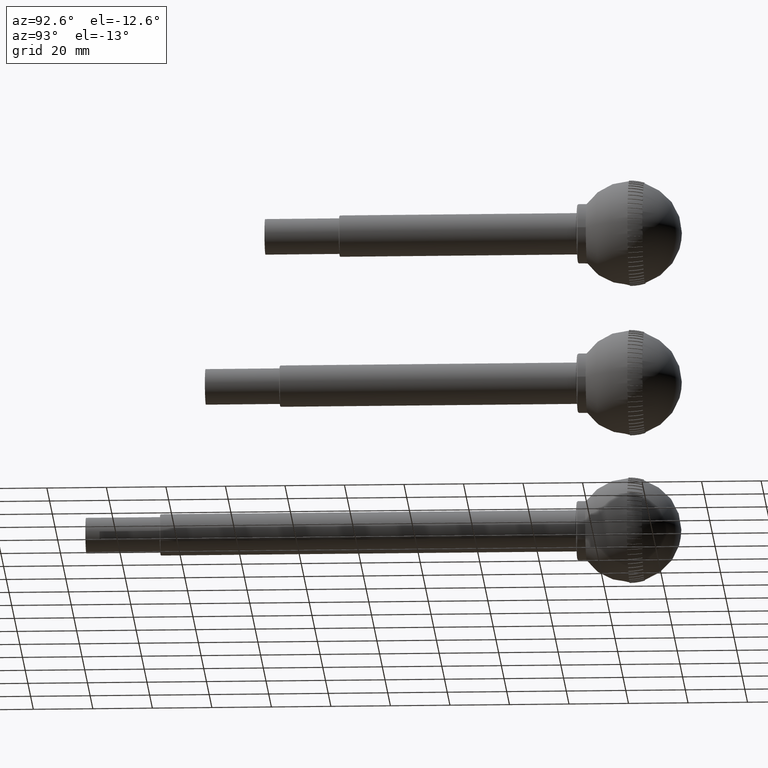
[diagram: clean part render]
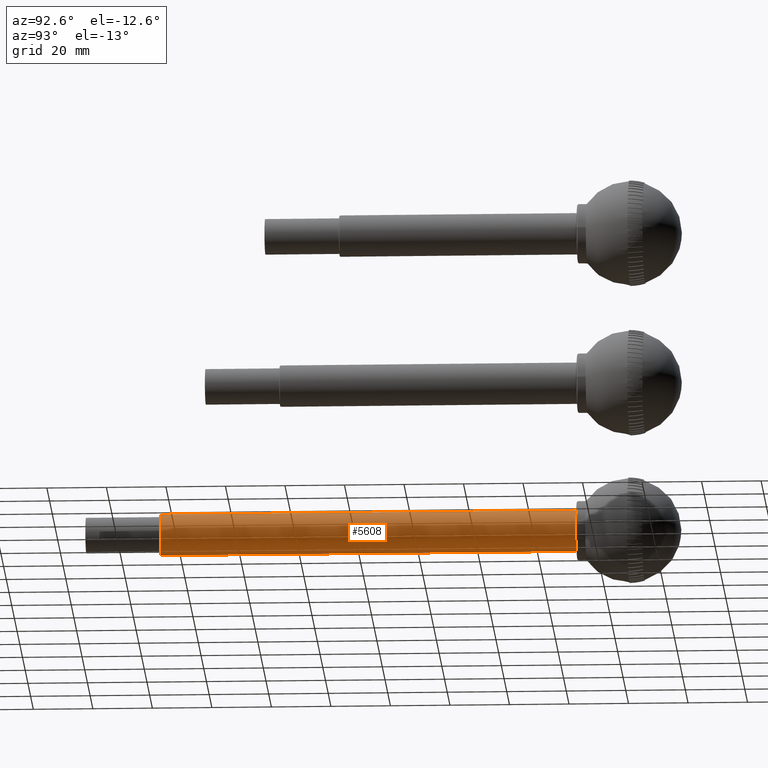
[diagram: same view with one face highlighted and labeled with its STEP entity id]
A machine part, auxiliary view. The second image highlights one B-rep face of the part: STEP entity #5608.
In plain terms, the highlighted cylindrical surface (bore or boss wall) has radius 6.97 mm, axis along (-0, 1, 0).
Its self-contained STEP definition (entity closure, byte-faithful):
#868=CYLINDRICAL_SURFACE('',#6458,6.97000000000002);
#950=FACE_BOUND('',#1694,.T.);
#1281=FACE_OUTER_BOUND('',#1693,.T.);
#1693=EDGE_LOOP('',(#4958));
#1694=EDGE_LOOP('',(#4959));
#2208=CIRCLE('',#6456,6.97000000000002);
#2210=CIRCLE('',#6459,6.97000000000002);
#2717=VERTEX_POINT('',#10014);
#2719=VERTEX_POINT('',#10019);
#3466=EDGE_CURVE('',#2717,#2717,#2208,.T.);
#3468=EDGE_CURVE('',#2719,#2719,#2210,.T.);
#4958=ORIENTED_EDGE('',*,*,#3468,.F.);
#4959=ORIENTED_EDGE('',*,*,#3466,.F.);
#5608=ADVANCED_FACE('',(#1281,#950),#868,.T.);
#6456=AXIS2_PLACEMENT_3D('',#10015,#8391,#8392);
#6458=AXIS2_PLACEMENT_3D('',#10018,#8395,#8396);
#6459=AXIS2_PLACEMENT_3D('',#10020,#8397,#8398);
#8391=DIRECTION('center_axis',(1.,0.,0.));
#8392=DIRECTION('ref_axis',(0.,-1.,0.));
#8395=DIRECTION('center_axis',(1.,0.,0.));
#8396=DIRECTION('ref_axis',(0.,1.,0.));
#8397=DIRECTION('center_axis',(-1.,0.,0.));
#8398=DIRECTION('ref_axis',(0.,-1.,0.));
#10014=CARTESIAN_POINT('',(164.8,6.97000000000002,8.53578819005708E-16));
#10015=CARTESIAN_POINT('Origin',(164.8,0.,0.));
#10018=CARTESIAN_POINT('Origin',(95.,0.,0.));
#10019=CARTESIAN_POINT('',(25.2,6.97000000000002,-8.53578819005708E-16));
#10020=CARTESIAN_POINT('Origin',(25.2,0.,0.));